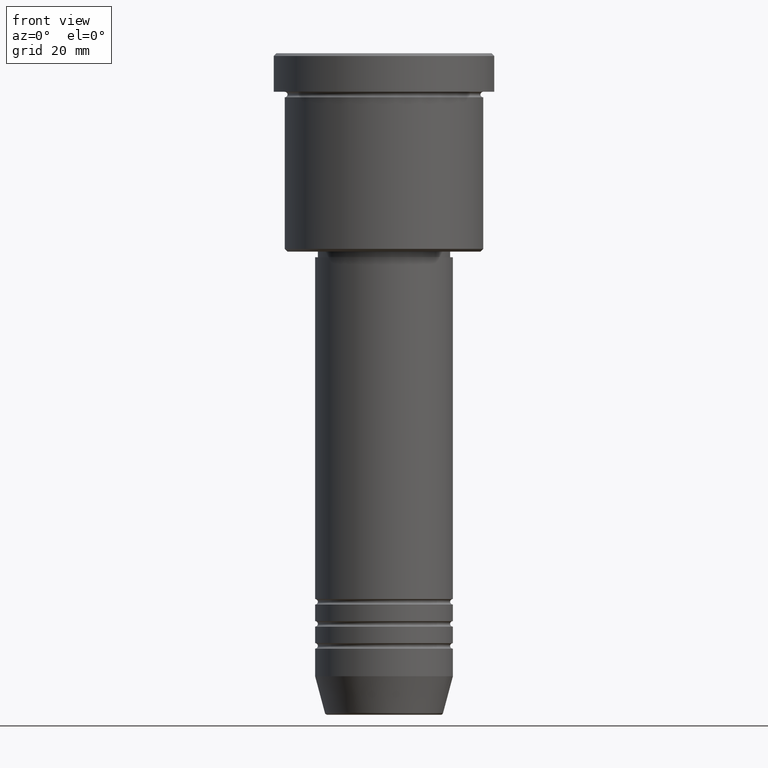
[diagram: clean part render]
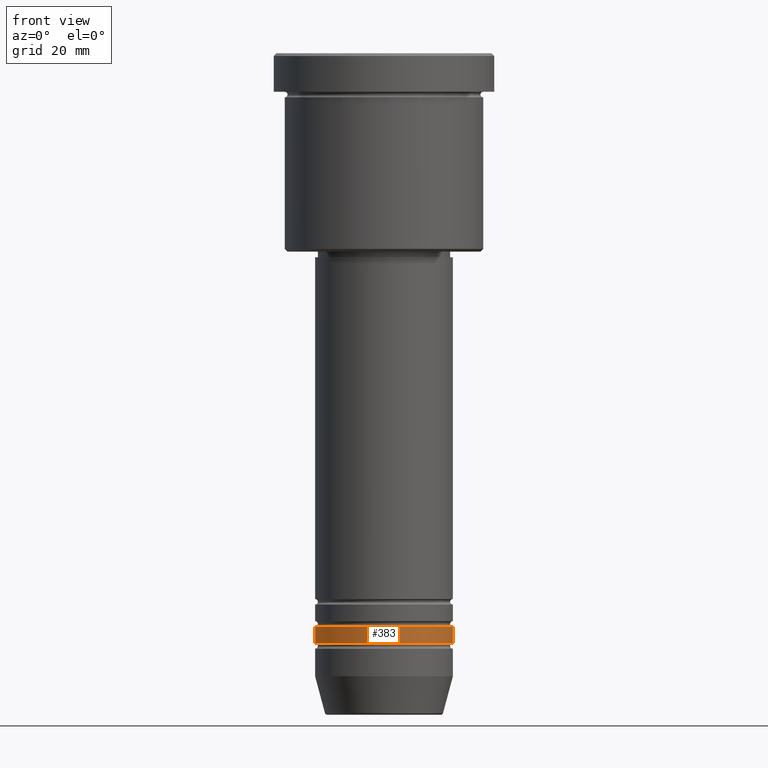
[diagram: same view with one face highlighted and labeled with its STEP entity id]
A machine part, front view. The second image highlights one B-rep face of the part: STEP entity #383.
In plain terms, the highlighted cylindrical surface (partial cylindrical patch) has radius 12.5 mm, axis along (-0, -0, 1).
Its self-contained STEP definition (entity closure, byte-faithful):
#2 = CARTESIAN_POINT ( 'NONE',  ( 12.50000000000000000, 0.000000000000000000, -103.9999999999999858 ) ) ;
#31 = FACE_OUTER_BOUND ( 'NONE', #577, .T. ) ;
#107 = CARTESIAN_POINT ( 'NONE',  ( 0.000000000000000000, 0.000000000000000000, -106.9999999999999716 ) ) ;
#207 = VERTEX_POINT ( 'NONE', #2 ) ;
#285 = DIRECTION ( 'NONE',  ( 1.000000000000000000, 0.000000000000000000, 0.000000000000000000 ) ) ;
#319 = CYLINDRICAL_SURFACE ( 'NONE', #469, 12.50000000000000000 ) ;
#330 = DIRECTION ( 'NONE',  ( -0.000000000000000000, -0.000000000000000000, 1.000000000000000000 ) ) ;
#383 = ADVANCED_FACE ( 'NONE', ( #31 ), #319, .T. ) ;
#389 = CARTESIAN_POINT ( 'NONE',  ( 0.000000000000000000, 0.000000000000000000, -103.9999999999999858 ) ) ;
#395 = DIRECTION ( 'NONE',  ( -0.000000000000000000, -0.000000000000000000, 1.000000000000000000 ) ) ;
#396 = DIRECTION ( 'NONE',  ( -0.000000000000000000, -0.000000000000000000, 1.000000000000000000 ) ) ;
#469 = AXIS2_PLACEMENT_3D ( 'NONE', #657, #395, #753 ) ;
#489 = VECTOR ( 'NONE', #330, 1000.000000000000000 ) ;
#521 = VECTOR ( 'NONE', #1029, 1000.000000000000000 ) ;
#536 = DIRECTION ( 'NONE',  ( 1.000000000000000000, 0.000000000000000000, 0.000000000000000000 ) ) ;
#556 = CARTESIAN_POINT ( 'NONE',  ( -12.50000000000000000, 1.530808498934191521E-15, 0.000000000000000000 ) ) ;
#577 = EDGE_LOOP ( 'NONE', ( #580, #882, #685, #1056 ) ) ;
#580 = ORIENTED_EDGE ( 'NONE', *, *, #817, .F. ) ;
#657 = CARTESIAN_POINT ( 'NONE',  ( 0.000000000000000000, 0.000000000000000000, 0.000000000000000000 ) ) ;
#685 = ORIENTED_EDGE ( 'NONE', *, *, #1139, .T. ) ;
#703 = VERTEX_POINT ( 'NONE', #748 ) ;
#741 = LINE ( 'NONE', #556, #521 ) ;
#748 = CARTESIAN_POINT ( 'NONE',  ( -12.50000000000000000, 1.530808498934191521E-15, -106.9999999999999716 ) ) ;
#753 = DIRECTION ( 'NONE',  ( 1.000000000000000000, 0.000000000000000000, 0.000000000000000000 ) ) ;
#787 = CIRCLE ( 'NONE', #1174, 12.50000000000000000 ) ;
#805 = VERTEX_POINT ( 'NONE', #891 ) ;
#817 = EDGE_CURVE ( 'NONE', #703, #1006, #741, .T. ) ;
#822 = DIRECTION ( 'NONE',  ( -0.000000000000000000, -0.000000000000000000, 1.000000000000000000 ) ) ;
#870 = AXIS2_PLACEMENT_3D ( 'NONE', #389, #396, #285 ) ;
#881 = CARTESIAN_POINT ( 'NONE',  ( 12.50000000000000000, 0.000000000000000000, 0.000000000000000000 ) ) ;
#882 = ORIENTED_EDGE ( 'NONE', *, *, #1167, .T. ) ;
#891 = CARTESIAN_POINT ( 'NONE',  ( 12.50000000000000000, 0.000000000000000000, -106.9999999999999716 ) ) ;
#1006 = VERTEX_POINT ( 'NONE', #1164 ) ;
#1010 = LINE ( 'NONE', #881, #489 ) ;
#1029 = DIRECTION ( 'NONE',  ( -0.000000000000000000, -0.000000000000000000, 1.000000000000000000 ) ) ;
#1056 = ORIENTED_EDGE ( 'NONE', *, *, #1131, .F. ) ;
#1100 = CIRCLE ( 'NONE', #870, 12.50000000000000000 ) ;
#1131 = EDGE_CURVE ( 'NONE', #1006, #207, #1100, .T. ) ;
#1139 = EDGE_CURVE ( 'NONE', #805, #207, #1010, .T. ) ;
#1164 = CARTESIAN_POINT ( 'NONE',  ( -12.50000000000000000, 1.530808498934191521E-15, -103.9999999999999858 ) ) ;
#1167 = EDGE_CURVE ( 'NONE', #703, #805, #787, .T. ) ;
#1174 = AXIS2_PLACEMENT_3D ( 'NONE', #107, #822, #536 ) ;